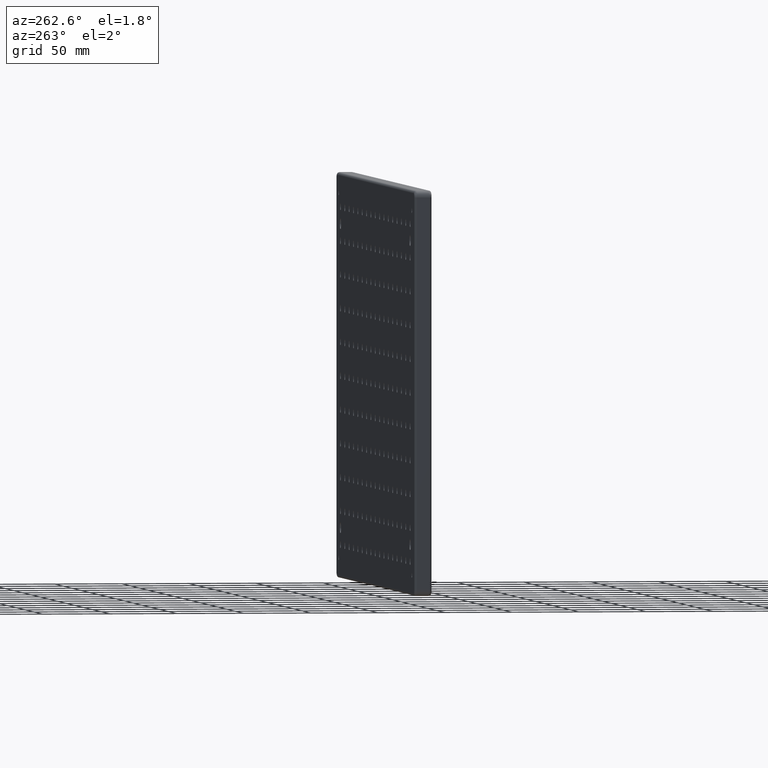
[diagram: clean part render]
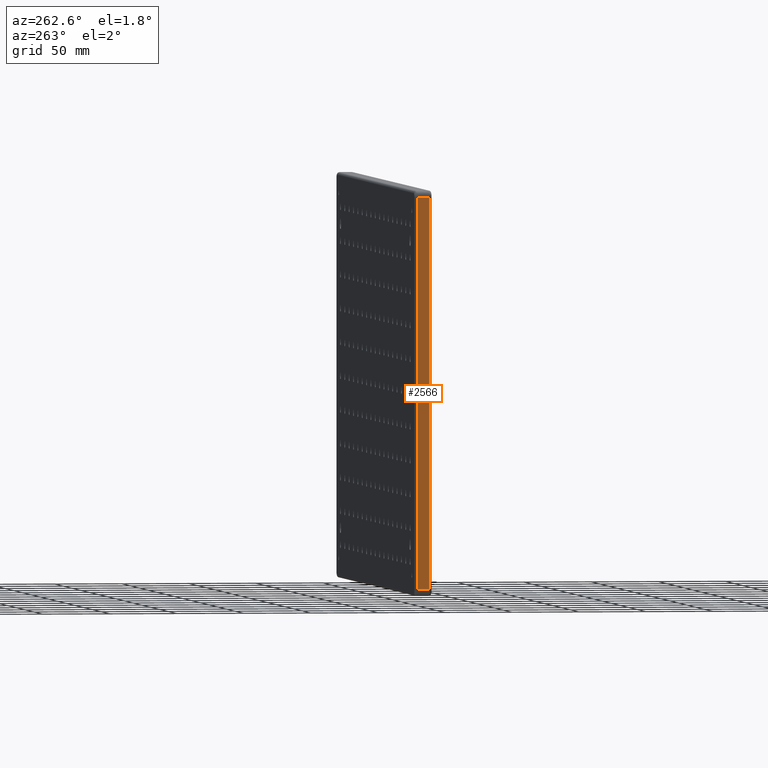
[diagram: same view with one face highlighted and labeled with its STEP entity id]
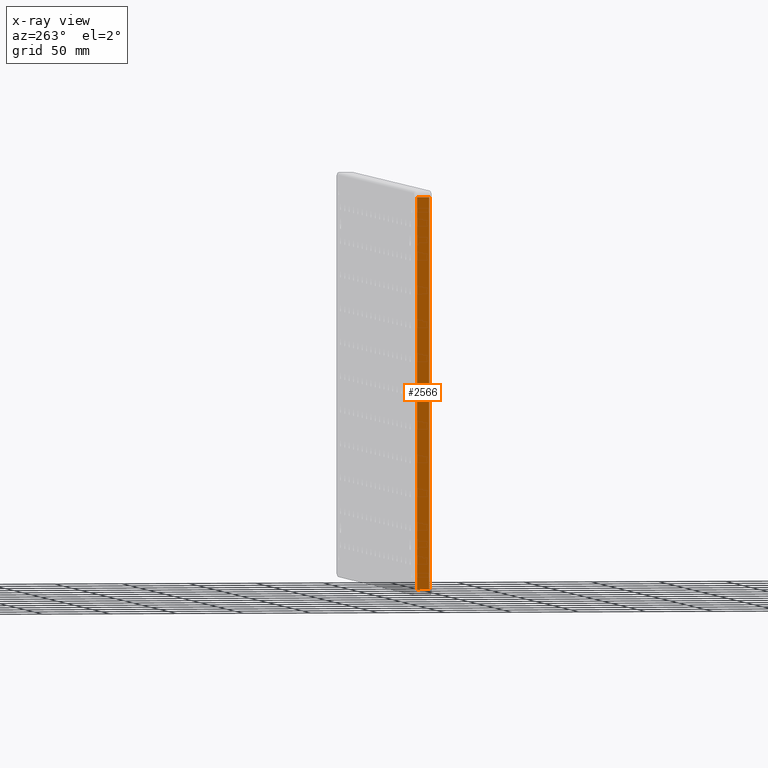
[diagram: x-ray of the same camera — body ghosted, the highlighted face saturated]
A machine part, auxiliary view. The second image highlights one B-rep face of the part: STEP entity #2566.
The next image is the same camera in x-ray: the body ghosted, the highlighted face saturated — about 0% of this face is hidden behind the body in this view.
In plain terms, the highlighted planar face has unit normal (1, -0, 0).
Its self-contained STEP definition (entity closure, byte-faithful):
#25 = LINE ( 'NONE', #3760, #942 ) ;
#249 = EDGE_CURVE ( 'NONE', #14180, #11547, #1773, .T. ) ;
#942 = VECTOR ( 'NONE', #9688, 1000.000000000000000 ) ;
#968 = DIRECTION ( 'NONE',  ( 0.0000000000000000000, 0.0000000000000000000, -1.000000000000000000 ) ) ;
#1159 = CARTESIAN_POINT ( 'NONE',  ( -225.0000000000000000, -4.500000000000000000, 145.0000000000000000 ) ) ;
#1257 = LINE ( 'NONE', #12020, #11951 ) ;
#1332 = VECTOR ( 'NONE', #4588, 1000.000000000000000 ) ;
#1773 = LINE ( 'NONE', #7181, #2143 ) ;
#1892 = EDGE_CURVE ( 'NONE', #7597, #6963, #2466, .T. ) ;
#1984 = EDGE_CURVE ( 'NONE', #11547, #7597, #25, .T. ) ;
#2143 = VECTOR ( 'NONE', #11973, 1000.000000000000000 ) ;
#2216 = AXIS2_PLACEMENT_3D ( 'NONE', #11541, #14061, #968 ) ;
#2466 = LINE ( 'NONE', #9487, #1332 ) ;
#2566 = ADVANCED_FACE ( 'NONE', ( #6479 ), #10423, .F. ) ;
#3176 = EDGE_CURVE ( 'NONE', #6963, #14180, #1257, .T. ) ;
#3760 = CARTESIAN_POINT ( 'NONE',  ( -225.0000000000000000, 6.500000000000000000, -144.9999999999999400 ) ) ;
#3833 = CARTESIAN_POINT ( 'NONE',  ( -225.0000000000000000, 4.500000000000000000, -144.9999999999999400 ) ) ;
#4050 = EDGE_LOOP ( 'NONE', ( #10674, #6732, #4627, #11514 ) ) ;
#4588 = DIRECTION ( 'NONE',  ( -0.0000000000000000000, 0.0000000000000000000, 1.000000000000000000 ) ) ;
#4627 = ORIENTED_EDGE ( 'NONE', *, *, #3176, .T. ) ;
#6479 = FACE_OUTER_BOUND ( 'NONE', #4050, .T. ) ;
#6732 = ORIENTED_EDGE ( 'NONE', *, *, #1892, .T. ) ;
#6963 = VERTEX_POINT ( 'NONE', #1159 ) ;
#7181 = CARTESIAN_POINT ( 'NONE',  ( -225.0000000000000000, 4.500000000000000000, 150.0000000000000000 ) ) ;
#7597 = VERTEX_POINT ( 'NONE', #8795 ) ;
#8795 = CARTESIAN_POINT ( 'NONE',  ( -225.0000000000000000, -4.500000000000000000, -144.9999999999999400 ) ) ;
#9487 = CARTESIAN_POINT ( 'NONE',  ( -225.0000000000000000, -4.500000000000000000, 145.0000000000000000 ) ) ;
#9688 = DIRECTION ( 'NONE',  ( -0.0000000000000000000, -1.000000000000000000, 0.0000000000000000000 ) ) ;
#10423 = PLANE ( 'NONE',  #2216 ) ;
#10674 = ORIENTED_EDGE ( 'NONE', *, *, #1984, .T. ) ;
#11514 = ORIENTED_EDGE ( 'NONE', *, *, #249, .T. ) ;
#11541 = CARTESIAN_POINT ( 'NONE',  ( -225.0000000000000000, 6.500000000000000000, 150.0000000000000000 ) ) ;
#11547 = VERTEX_POINT ( 'NONE', #3833 ) ;
#11951 = VECTOR ( 'NONE', #13212, 1000.000000000000000 ) ;
#11973 = DIRECTION ( 'NONE',  ( -0.0000000000000000000, -0.0000000000000000000, -1.000000000000000000 ) ) ;
#12020 = CARTESIAN_POINT ( 'NONE',  ( -225.0000000000000000, 6.500000000000000000, 145.0000000000000000 ) ) ;
#13212 = DIRECTION ( 'NONE',  ( 0.0000000000000000000, 1.000000000000000000, -0.0000000000000000000 ) ) ;
#14061 = DIRECTION ( 'NONE',  ( 1.000000000000000000, -0.0000000000000000000, 0.0000000000000000000 ) ) ;
#14180 = VERTEX_POINT ( 'NONE', #15172 ) ;
#15172 = CARTESIAN_POINT ( 'NONE',  ( -225.0000000000000000, 4.500000000000000000, 145.0000000000000000 ) ) ;